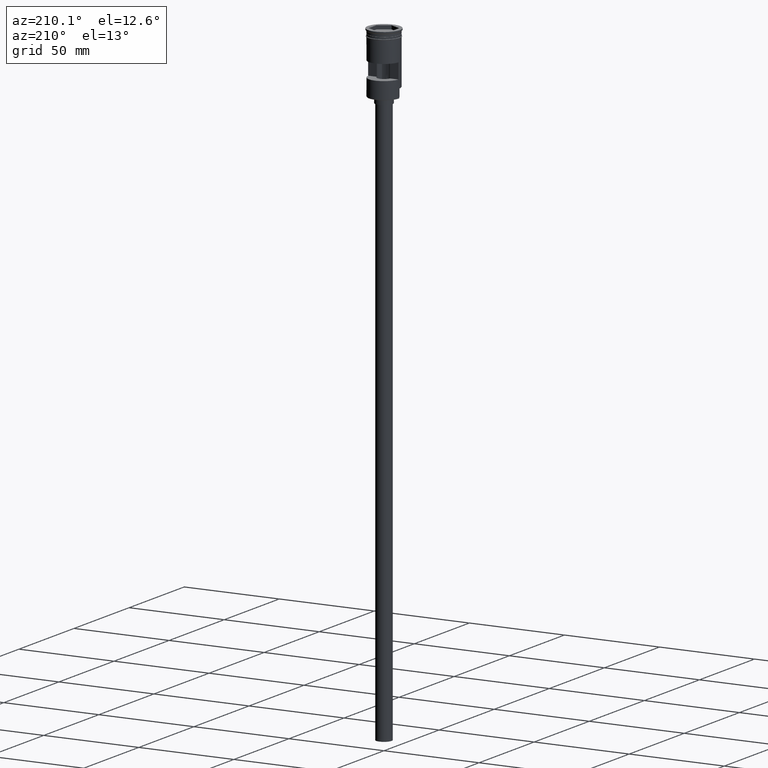
[diagram: clean part render]
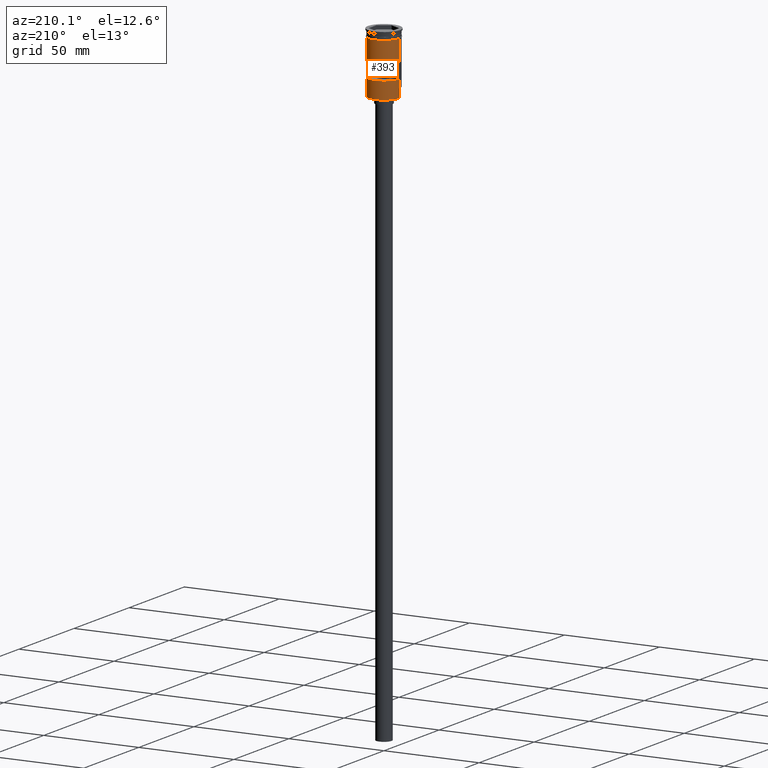
[diagram: same view with one face highlighted and labeled with its STEP entity id]
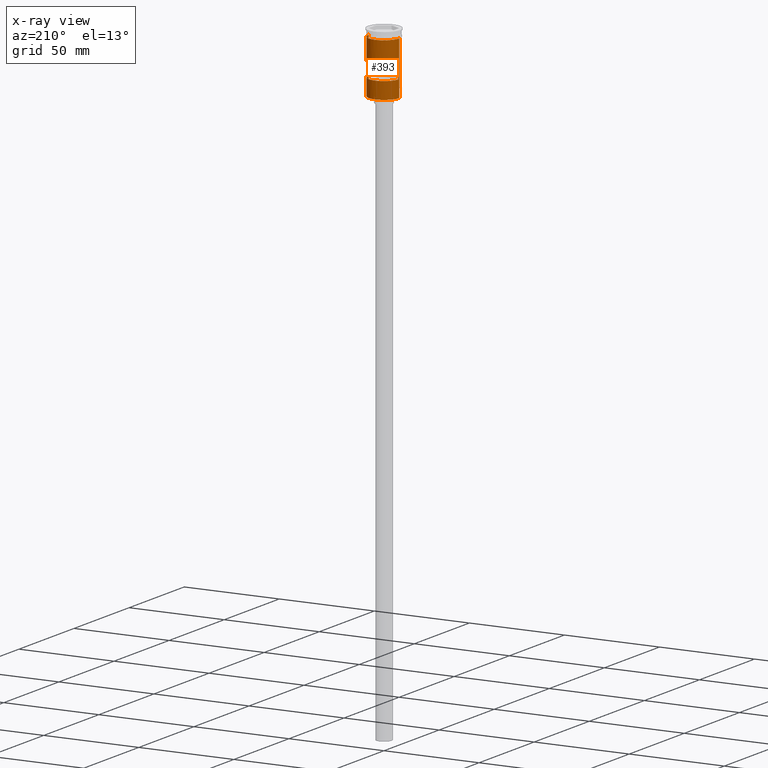
[diagram: x-ray of the same camera — body ghosted, the highlighted face saturated]
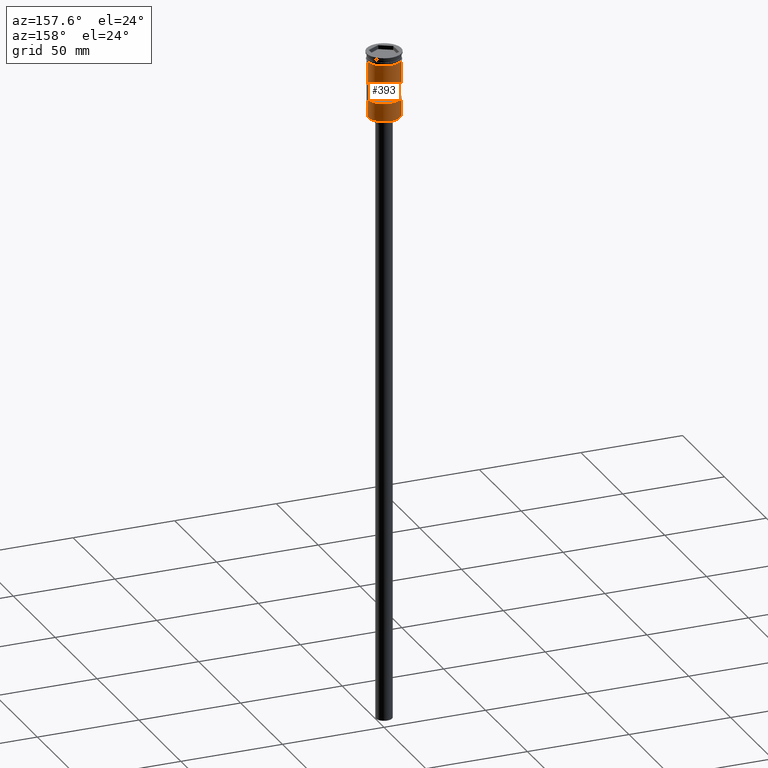
[diagram: same view with one face highlighted and labeled with its STEP entity id]
A machine part, auxiliary view. The second image highlights one B-rep face of the part: STEP entity #393.
The next image is the same camera in x-ray: the body ghosted, the highlighted face saturated — about 0% of this face is hidden behind the body in this view.
A second angle (auxiliary view) of the same face is appended — the face is thin or edge-on in the first view.
In plain terms, the highlighted cylindrical surface (edge-blend (fillet) strip) has radius 8 mm, axis along (-0, -0, 1).
Its self-contained STEP definition (entity closure, byte-faithful):
#8 = VERTEX_POINT ( 'NONE', #1044 ) ;
#16 = AXIS2_PLACEMENT_3D ( 'NONE', #782, #142, #665 ) ;
#34 = CARTESIAN_POINT ( 'NONE',  ( -7.977468270071648604, 0.6000000000000000888, -15.00000000000000000 ) ) ;
#37 = AXIS2_PLACEMENT_3D ( 'NONE', #693, #561, #291 ) ;
#45 = DIRECTION ( 'NONE',  ( -0.000000000000000000, -0.000000000000000000, 1.000000000000000000 ) ) ;
#50 = DIRECTION ( 'NONE',  ( 1.000000000000000000, 0.000000000000000000, 0.000000000000000000 ) ) ;
#53 = EDGE_CURVE ( 'NONE', #207, #1168, #1269, .T. ) ;
#88 = CIRCLE ( 'NONE', #608, 8.000000000000000000 ) ;
#103 = EDGE_CURVE ( 'NONE', #1168, #677, #1298, .T. ) ;
#142 = DIRECTION ( 'NONE',  ( -0.000000000000000000, 2.344220913482172642E-16, -1.000000000000000000 ) ) ;
#194 = CARTESIAN_POINT ( 'NONE',  ( -8.000000000000000000, 9.797174393178825657E-16, -3.999999999999997335 ) ) ;
#206 = CARTESIAN_POINT ( 'NONE',  ( 7.977468270071648604, 0.6000000000000000888, 0.000000000000000000 ) ) ;
#207 = VERTEX_POINT ( 'NONE', #496 ) ;
#225 = CARTESIAN_POINT ( 'NONE',  ( 0.000000000000000000, 0.000000000000000000, -31.80000000000003624 ) ) ;
#264 = CARTESIAN_POINT ( 'NONE',  ( -7.977468270071648604, 0.6000000000000000888, -23.00000000000000000 ) ) ;
#268 = VERTEX_POINT ( 'NONE', #512 ) ;
#272 = ORIENTED_EDGE ( 'NONE', *, *, #896, .T. ) ;
#285 = CARTESIAN_POINT ( 'NONE',  ( -7.999999999999992895, 0.000000000000000000, -27.30000000000006466 ) ) ;
#288 = VERTEX_POINT ( 'NONE', #1429 ) ;
#289 = DIRECTION ( 'NONE',  ( -0.000000000000000000, -0.000000000000000000, 1.000000000000000000 ) ) ;
#291 = DIRECTION ( 'NONE',  ( 1.000000000000000000, 0.000000000000000000, 0.000000000000000000 ) ) ;
#347 = CIRCLE ( 'NONE', #815, 7.999999999999996447 ) ;
#354 = DIRECTION ( 'NONE',  ( 0.000000000000000000, 0.000000000000000000, 1.000000000000000000 ) ) ;
#359 = ORIENTED_EDGE ( 'NONE', *, *, #495, .T. ) ;
#360 = EDGE_CURVE ( 'NONE', #8, #207, #1057, .T. ) ;
#393 = ADVANCED_FACE ( 'NONE', ( #446, #1527 ), #414, .T. ) ;
#396 = VECTOR ( 'NONE', #1347, 1000.000000000000000 ) ;
#414 = CYLINDRICAL_SURFACE ( 'NONE', #37, 7.999999999999996447 ) ;
#446 = FACE_BOUND ( 'NONE', #1244, .T. ) ;
#449 = VECTOR ( 'NONE', #715, 1000.000000000000000 ) ;
#495 = EDGE_CURVE ( 'NONE', #1462, #1249, #614, .T. ) ;
#496 = CARTESIAN_POINT ( 'NONE',  ( 7.977468270071646828, 0.6000000000000000888, -23.00000000000000000 ) ) ;
#506 = ORIENTED_EDGE ( 'NONE', *, *, #1507, .F. ) ;
#512 = CARTESIAN_POINT ( 'NONE',  ( 8.000000000000000000, 0.000000000000000000, -3.999999999999997335 ) ) ;
#560 = LINE ( 'NONE', #1056, #790 ) ;
#561 = DIRECTION ( 'NONE',  ( -0.000000000000000000, -0.000000000000000000, 1.000000000000000000 ) ) ;
#564 = DIRECTION ( 'NONE',  ( -0.000000000000000000, -0.000000000000000000, 1.000000000000000000 ) ) ;
#567 = EDGE_CURVE ( 'NONE', #1452, #288, #347, .T. ) ;
#571 = EDGE_LOOP ( 'NONE', ( #272, #359, #1008, #1094, #966, #1430 ) ) ;
#580 = CARTESIAN_POINT ( 'NONE',  ( 0.000000000000000000, 0.000000000000000000, -23.00000000000000000 ) ) ;
#608 = AXIS2_PLACEMENT_3D ( 'NONE', #1150, #45, #50 ) ;
#611 = VECTOR ( 'NONE', #289, 1000.000000000000000 ) ;
#614 = LINE ( 'NONE', #863, #396 ) ;
#629 = VECTOR ( 'NONE', #564, 1000.000000000000000 ) ;
#658 = VECTOR ( 'NONE', #1167, 1000.000000000000000 ) ;
#665 = DIRECTION ( 'NONE',  ( 0.000000000000000000, -1.000000000000000000, -2.168404344971009854E-16 ) ) ;
#677 = VERTEX_POINT ( 'NONE', #34 ) ;
#693 = CARTESIAN_POINT ( 'NONE',  ( 0.000000000000000000, 0.000000000000000000, 0.000000000000000000 ) ) ;
#695 = EDGE_CURVE ( 'NONE', #268, #1249, #88, .T. ) ;
#696 = DIRECTION ( 'NONE',  ( 0.000000000000000000, 0.000000000000000000, 1.000000000000000000 ) ) ;
#715 = DIRECTION ( 'NONE',  ( -0.000000000000000000, -0.000000000000000000, 1.000000000000000000 ) ) ;
#720 = DIRECTION ( 'NONE',  ( -1.000000000000000000, 0.000000000000000000, 0.000000000000000000 ) ) ;
#738 = CARTESIAN_POINT ( 'NONE',  ( 7.999999999999992895, 9.797174393178817769E-16, -32.00000000000000000 ) ) ;
#782 = CARTESIAN_POINT ( 'NONE',  ( 0.000000000000000000, 0.000000000000000000, -15.00000000000000000 ) ) ;
#785 = ORIENTED_EDGE ( 'NONE', *, *, #360, .F. ) ;
#790 = VECTOR ( 'NONE', #1181, 1000.000000000000000 ) ;
#815 = AXIS2_PLACEMENT_3D ( 'NONE', #225, #354, #720 ) ;
#830 = CARTESIAN_POINT ( 'NONE',  ( 7.999999999999996447, 9.797174393178821713E-16, -27.30000000000006466 ) ) ;
#853 = VERTEX_POINT ( 'NONE', #830 ) ;
#863 = CARTESIAN_POINT ( 'NONE',  ( -7.999999999999996447, 9.797174393178821713E-16, 0.000000000000000000 ) ) ;
#896 = EDGE_CURVE ( 'NONE', #288, #1462, #560, .T. ) ;
#928 = EDGE_CURVE ( 'NONE', #1452, #853, #1228, .T. ) ;
#949 = CIRCLE ( 'NONE', #16, 7.999999999999996447 ) ;
#966 = ORIENTED_EDGE ( 'NONE', *, *, #928, .F. ) ;
#1008 = ORIENTED_EDGE ( 'NONE', *, *, #695, .F. ) ;
#1009 = CARTESIAN_POINT ( 'NONE',  ( 7.999999999999996447, 0.000000000000000000, 0.000000000000000000 ) ) ;
#1038 = ORIENTED_EDGE ( 'NONE', *, *, #53, .F. ) ;
#1044 = CARTESIAN_POINT ( 'NONE',  ( 7.977468270071646828, 0.6000000000000000888, -15.00000000000000000 ) ) ;
#1056 = CARTESIAN_POINT ( 'NONE',  ( -7.999999999999992895, 0.000000000000000000, -32.00000000000000000 ) ) ;
#1057 = LINE ( 'NONE', #206, #658 ) ;
#1067 = DIRECTION ( 'NONE',  ( -1.000000000000000000, 0.000000000000000000, 0.000000000000000000 ) ) ;
#1085 = EDGE_CURVE ( 'NONE', #853, #268, #1146, .T. ) ;
#1094 = ORIENTED_EDGE ( 'NONE', *, *, #1085, .F. ) ;
#1146 = LINE ( 'NONE', #1009, #611 ) ;
#1150 = CARTESIAN_POINT ( 'NONE',  ( 0.000000000000000000, 0.000000000000000000, -3.999999999999997335 ) ) ;
#1167 = DIRECTION ( 'NONE',  ( 0.000000000000000000, 0.000000000000000000, -1.000000000000000000 ) ) ;
#1168 = VERTEX_POINT ( 'NONE', #264 ) ;
#1181 = DIRECTION ( 'NONE',  ( -0.000000000000000000, -0.000000000000000000, 1.000000000000000000 ) ) ;
#1228 = LINE ( 'NONE', #738, #449 ) ;
#1244 = EDGE_LOOP ( 'NONE', ( #785, #506, #1472, #1038 ) ) ;
#1249 = VERTEX_POINT ( 'NONE', #194 ) ;
#1269 = CIRCLE ( 'NONE', #1484, 7.999999999999996447 ) ;
#1298 = LINE ( 'NONE', #1310, #629 ) ;
#1310 = CARTESIAN_POINT ( 'NONE',  ( -7.977468270071648604, 0.6000000000000000888, 0.000000000000000000 ) ) ;
#1347 = DIRECTION ( 'NONE',  ( -0.000000000000000000, -0.000000000000000000, 1.000000000000000000 ) ) ;
#1429 = CARTESIAN_POINT ( 'NONE',  ( -7.999999999999992895, 0.000000000000000000, -31.80000000000003624 ) ) ;
#1430 = ORIENTED_EDGE ( 'NONE', *, *, #567, .T. ) ;
#1452 = VERTEX_POINT ( 'NONE', #1504 ) ;
#1462 = VERTEX_POINT ( 'NONE', #285 ) ;
#1472 = ORIENTED_EDGE ( 'NONE', *, *, #103, .F. ) ;
#1484 = AXIS2_PLACEMENT_3D ( 'NONE', #580, #696, #1067 ) ;
#1504 = CARTESIAN_POINT ( 'NONE',  ( 7.999999999999992895, 9.797174393178817769E-16, -31.80000000000003624 ) ) ;
#1507 = EDGE_CURVE ( 'NONE', #677, #8, #949, .T. ) ;
#1527 = FACE_OUTER_BOUND ( 'NONE', #571, .T. ) ;